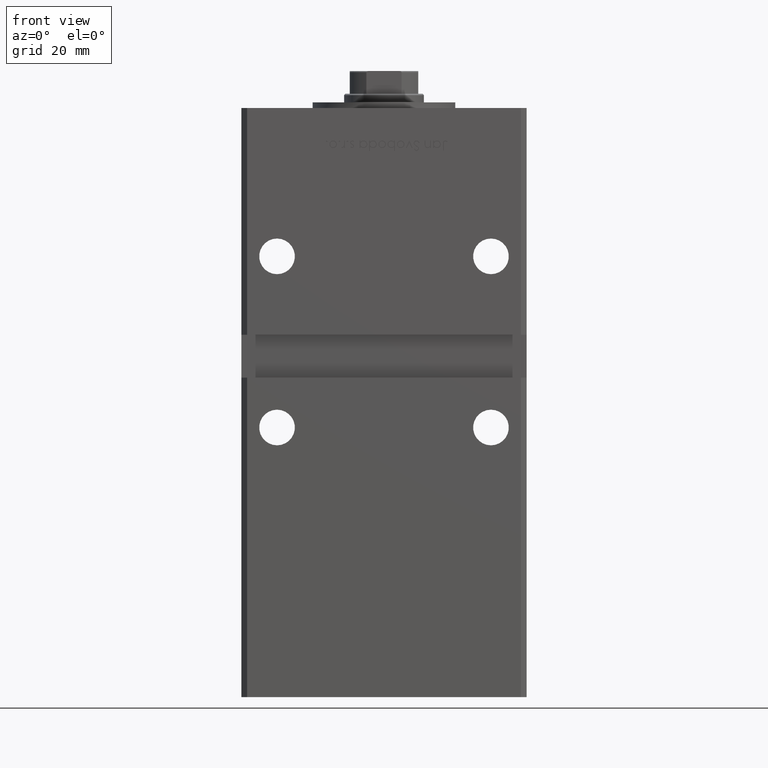
[diagram: clean part render]
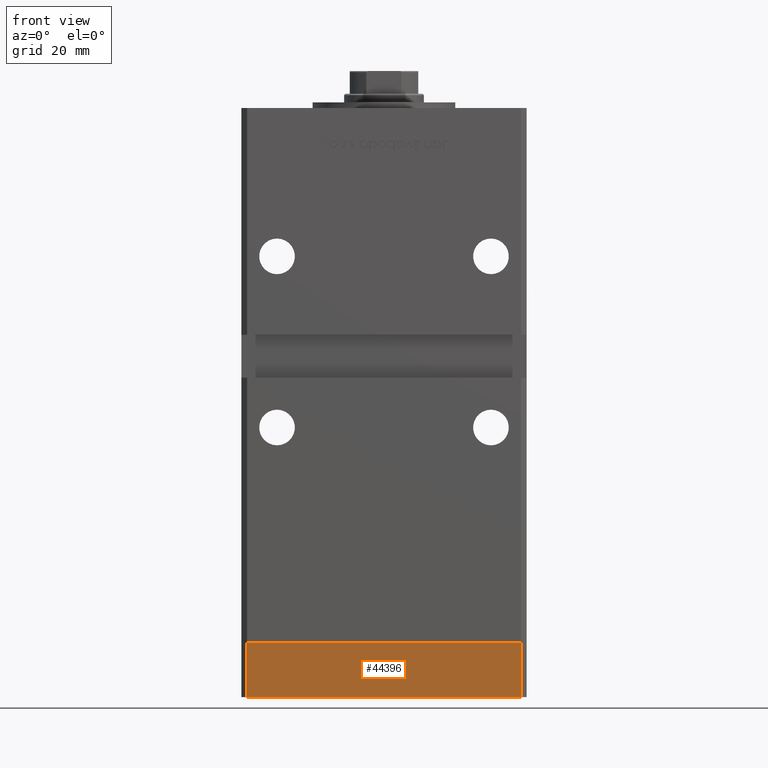
[diagram: same view with one face highlighted and labeled with its STEP entity id]
A machine part, front view. The second image highlights one B-rep face of the part: STEP entity #44396.
In plain terms, the highlighted planar face has unit normal (0, -1, -0).
Its self-contained STEP definition (entity closure, byte-faithful):
#138 = EDGE_CURVE ( 'NONE', #47874, #12928, #32384, .T. ) ;
#1694 = LINE ( 'NONE', #46378, #7824 ) ;
#1707 = VECTOR ( 'NONE', #17261, 1000.000000000000000 ) ;
#3043 = CARTESIAN_POINT ( 'NONE',  ( -47.99999999999999289, -43.50000000000001421, -19.00000000000000000 ) ) ;
#7824 = VECTOR ( 'NONE', #51459, 1000.000000000000000 ) ;
#8512 = CARTESIAN_POINT ( 'NONE',  ( 47.99999999999999289, -43.50000000000001421, 0.000000000000000000 ) ) ;
#9612 = CARTESIAN_POINT ( 'NONE',  ( 47.99999999999999289, -43.50000000000001421, -19.00000000000000000 ) ) ;
#10391 = FACE_OUTER_BOUND ( 'NONE', #21136, .T. ) ;
#12032 = EDGE_CURVE ( 'NONE', #33720, #34654, #45772, .T. ) ;
#12928 = VERTEX_POINT ( 'NONE', #9612 ) ;
#13899 = AXIS2_PLACEMENT_3D ( 'NONE', #31622, #23551, #43210 ) ;
#15219 = PLANE ( 'NONE',  #13899 ) ;
#16725 = CARTESIAN_POINT ( 'NONE',  ( -47.99999999999999289, -43.50000000000001421, 0.000000000000000000 ) ) ;
#17261 = DIRECTION ( 'NONE',  ( 1.000000000000000000, 0.000000000000000000, 0.000000000000000000 ) ) ;
#19827 = LINE ( 'NONE', #52646, #29969 ) ;
#21136 = EDGE_LOOP ( 'NONE', ( #48009, #45996, #52092, #50403 ) ) ;
#23551 = DIRECTION ( 'NONE',  ( 0.000000000000000000, -1.000000000000000000, 0.000000000000000000 ) ) ;
#27817 = DIRECTION ( 'NONE',  ( 1.000000000000000000, 0.000000000000000000, 0.000000000000000000 ) ) ;
#29969 = VECTOR ( 'NONE', #49151, 1000.000000000000000 ) ;
#31622 = CARTESIAN_POINT ( 'NONE',  ( -47.99999999999999289, -43.50000000000001421, -19.00000000000000000 ) ) ;
#32384 = LINE ( 'NONE', #3043, #39274 ) ;
#33720 = VERTEX_POINT ( 'NONE', #41527 ) ;
#34577 = EDGE_CURVE ( 'NONE', #47874, #33720, #19827, .T. ) ;
#34654 = VERTEX_POINT ( 'NONE', #8512 ) ;
#39274 = VECTOR ( 'NONE', #27817, 1000.000000000000000 ) ;
#40326 = CARTESIAN_POINT ( 'NONE',  ( -47.99999999999999289, -43.50000000000001421, -19.00000000000000000 ) ) ;
#41527 = CARTESIAN_POINT ( 'NONE',  ( -47.99999999999999289, -43.50000000000001421, 0.000000000000000000 ) ) ;
#43210 = DIRECTION ( 'NONE',  ( 0.000000000000000000, -0.000000000000000000, -1.000000000000000000 ) ) ;
#44396 = ADVANCED_FACE ( 'NONE', ( #10391 ), #15219, .T. ) ;
#45772 = LINE ( 'NONE', #16725, #1707 ) ;
#45996 = ORIENTED_EDGE ( 'NONE', *, *, #34577, .F. ) ;
#46378 = CARTESIAN_POINT ( 'NONE',  ( 47.99999999999999289, -43.50000000000001421, -19.00000000000000000 ) ) ;
#47874 = VERTEX_POINT ( 'NONE', #40326 ) ;
#48009 = ORIENTED_EDGE ( 'NONE', *, *, #12032, .F. ) ;
#49151 = DIRECTION ( 'NONE',  ( 0.000000000000000000, 0.000000000000000000, 1.000000000000000000 ) ) ;
#50403 = ORIENTED_EDGE ( 'NONE', *, *, #50674, .T. ) ;
#50674 = EDGE_CURVE ( 'NONE', #12928, #34654, #1694, .T. ) ;
#51459 = DIRECTION ( 'NONE',  ( 0.000000000000000000, 0.000000000000000000, 1.000000000000000000 ) ) ;
#52092 = ORIENTED_EDGE ( 'NONE', *, *, #138, .T. ) ;
#52646 = CARTESIAN_POINT ( 'NONE',  ( -47.99999999999999289, -43.50000000000001421, -19.00000000000000000 ) ) ;